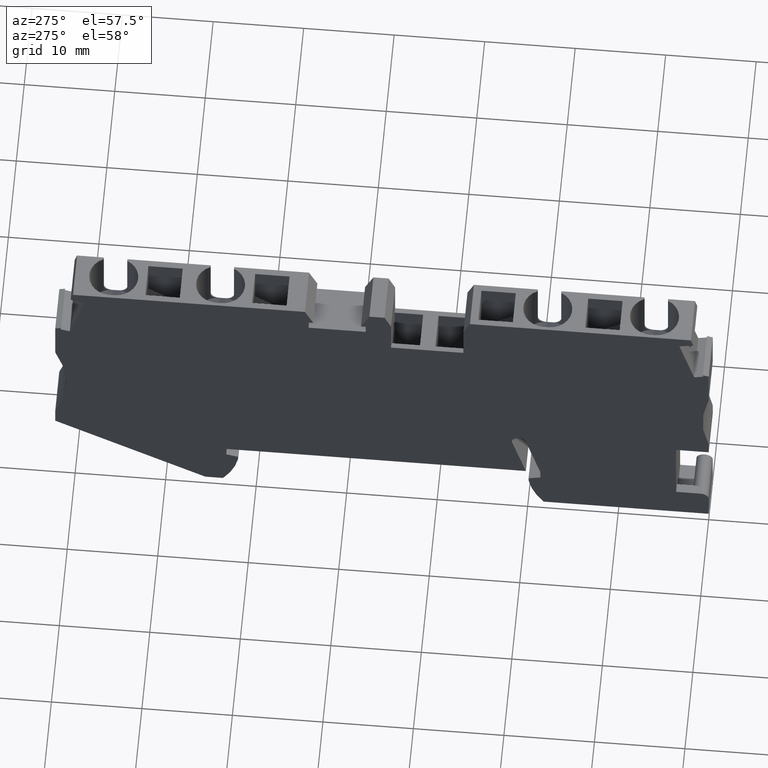
[diagram: clean part render]
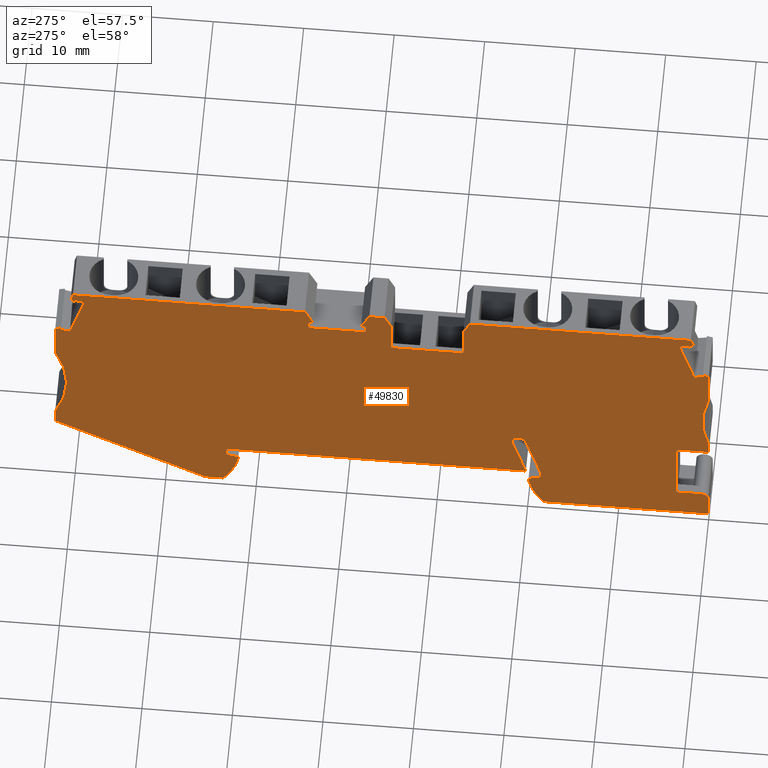
[diagram: same view with one face highlighted and labeled with its STEP entity id]
A machine part, auxiliary view. The second image highlights one B-rep face of the part: STEP entity #49830.
In plain terms, the highlighted planar face has unit normal (1, -0, -0).
Its self-contained STEP definition (entity closure, byte-faithful):
#590=CARTESIAN_POINT('',(65.1726403599232,35.8828020429767,
-5.15000000000003));
#600=VERTEX_POINT('',#590);
#750=CARTESIAN_POINT('',(66.1647270843106,36.2836310979319,
-5.15000000000003));
#760=VERTEX_POINT('',#750);
#790=CARTESIAN_POINT('',(0.,9.55134613065406,-5.15000000000003));
#800=DIRECTION('',(-0.927183854566833,-0.3746065934158,0.));
#810=VECTOR('',#800,1.);
#820=LINE('',#790,#810);
#830=EDGE_CURVE('',#760,#600,#820,.T.);
#2500=CARTESIAN_POINT('',(0.,27.8649441912292,-5.15000000000003));
#2510=DIRECTION('',(-0.990268068741587,0.139173100959946,0.));
#2520=VECTOR('',#2510,1.);
#2530=LINE('',#2500,#2520);
#2540=CARTESIAN_POINT('',(-0.0594846624507337,27.873304215342,
-5.15000000000003));
#2550=VERTEX_POINT('',#2540);
#2560=CARTESIAN_POINT('',(-1.11907149600432,28.0222194333691,
-5.15000000000003));
#2570=VERTEX_POINT('',#2560);
#2580=EDGE_CURVE('',#2550,#2570,#2530,.T.);
#4910=CARTESIAN_POINT('',(-2.574721754712,21.7806509272932,
-5.15000000000003));
#4920=VERTEX_POINT('',#4910);
#5070=CARTESIAN_POINT('',(-1.97757163966823,16.9172535208719,
-5.15000000000003));
#5080=VERTEX_POINT('',#5070);
#5110=CARTESIAN_POINT('',(0.0996059055751821,0.,-5.15000000000003));
#5120=DIRECTION('',(-0.12186934340515,0.992546151641322,0.));
#5130=VECTOR('',#5120,1.);
#5140=LINE('',#5110,#5130);
#5150=EDGE_CURVE('',#5080,#4920,#5140,.T.);
#5620=CARTESIAN_POINT('',(23.6590813655684,30.4927653966388,
-5.15000000000003));
#5630=VERTEX_POINT('',#5620);
#5660=CARTESIAN_POINT('',(27.40312217551,0.,-5.15000000000003));
#5670=DIRECTION('',(0.12186934340515,-0.992546151641322,0.));
#5680=VECTOR('',#5670,1.);
#5690=LINE('',#5660,#5680);
#5700=CARTESIAN_POINT('',(24.1831195422103,26.2248169445828,
-5.15000000000003));
#5710=VERTEX_POINT('',#5700);
#5720=EDGE_CURVE('',#5630,#5710,#5690,.T.);
#6070=CARTESIAN_POINT('',(18.2830849904164,0.,-5.15000000000003));
#6080=DIRECTION('',(0.139173100960267,0.990268068741542,0.));
#6090=VECTOR('',#6080,1.);
#6100=LINE('',#6070,#6090);
#6110=CARTESIAN_POINT('',(18.579939487428,2.11222949998687,
-5.15000000000003));
#6120=VERTEX_POINT('',#6110);
#6130=CARTESIAN_POINT('',(19.4454516024282,8.2706681974017,
-5.15000000000003));
#6140=VERTEX_POINT('',#6130);
#6150=EDGE_CURVE('',#6120,#6140,#6100,.T.);
#8210=CARTESIAN_POINT('',(-3.9768221027943,0.,-5.15000000000003));
#8220=DIRECTION('',(0.139173100960265,0.990268068741542,0.));
#8230=VECTOR('',#8220,1.);
#8240=LINE('',#8210,#8230);
#8250=CARTESIAN_POINT('',(-0.939754526024447,21.6098586805515,
-5.15000000000003));
#8260=VERTEX_POINT('',#8250);
#8270=EDGE_CURVE('',#8260,#2550,#8240,.T.);
#9200=CARTESIAN_POINT('',(34.5459302579226,30.3434253649531,
-5.15000000000003));
#9210=VERTEX_POINT('',#9200);
#9240=CARTESIAN_POINT('',(0.,26.1017184872538,-5.15000000000003));
#9250=DIRECTION('',(-0.992546151641329,-0.12186934340509,0.));
#9260=VECTOR('',#9250,1.);
#9270=LINE('',#9240,#9260);
#9280=CARTESIAN_POINT('',(40.8237846670545,31.1142489619904,
-5.15000000000003));
#9290=VERTEX_POINT('',#9280);
#9300=EDGE_CURVE('',#9290,#9210,#9270,.T.);
#9530=CARTESIAN_POINT('',(0.,29.3005621830774,-5.15000000000003));
#9540=DIRECTION('',(-0.992546151641307,-0.121869343405268,0.));
#9550=VECTOR('',#9540,1.);
#9560=LINE('',#9530,#9550);
#9570=CARTESIAN_POINT('',(33.7648010461225,33.4463584535037,
-5.15000000000003));
#9580=VERTEX_POINT('',#9570);
#9590=CARTESIAN_POINT('',(32.1054168262382,33.2426116906958,
-5.15000000000003));
#9600=VERTEX_POINT('',#9590);
#9610=EDGE_CURVE('',#9580,#9600,#9560,.T.);
#10240=CARTESIAN_POINT('',(0.,23.2555032303301,-5.15000000000003));
#10250=DIRECTION('',(-0.992546151641322,-0.121869343405147,0.));
#10260=VECTOR('',#10250,1.);
#10270=LINE('',#10240,#10260);
#10280=CARTESIAN_POINT('',(32.1234887553407,27.199771691824,
-5.15000000000003));
#10290=VERTEX_POINT('',#10280);
#10300=EDGE_CURVE('',#10290,#5710,#10270,.T.);
#15140=CARTESIAN_POINT('',(66.2701516819956,37.4375136583268,
-5.15000000000003));
#15150=VERTEX_POINT('',#15140);
#15200=CARTESIAN_POINT('',(81.3958890300398,0.,-5.15000000000003));
#15210=DIRECTION('',(0.374606593416301,-0.92718385456663,0.));
#15220=VECTOR('',#15210,1.);
#15230=LINE('',#15200,#15220);
#15240=CARTESIAN_POINT('',(66.6435147722448,36.5134075821014,
-5.15000000000003));
#15250=VERTEX_POINT('',#15240);
#15260=EDGE_CURVE('',#15150,#15250,#15230,.T.);
#15950=CARTESIAN_POINT('',(80.8242656163768,0.,-5.15000000000003));
#15960=DIRECTION('',(-0.374606593415343,0.927183854567017,0.));
#15970=VECTOR('',#15960,1.);
#15980=LINE('',#15950,#15970);
#15990=CARTESIAN_POINT('',(66.2667353146247,36.0311518681397,
-5.15000000000003));
#16000=VERTEX_POINT('',#15990);
#16010=EDGE_CURVE('',#16000,#760,#15980,.T.);
#17240=CARTESIAN_POINT('',(20.9898097165993,8.15460557620855,
-5.15000000000003));
#17250=VERTEX_POINT('',#17240);
#17280=CARTESIAN_POINT('',(20.2966220684799,8.25202674688056,
-5.15000000000003));
#17290=DIRECTION('',(0.,0.,1.));
#17300=DIRECTION('',(0.992546151641322,0.121869343405147,0.));
#17310=AXIS2_PLACEMENT_3D('',#17280,#17290,#17300);
#17320=CIRCLE('',#17310,0.700000000000238);
#17330=CARTESIAN_POINT('',(20.3722274973531,8.94793178287702,
-5.15000000000003));
#17340=VERTEX_POINT('',#17330);
#17350=EDGE_CURVE('',#17250,#17340,#17320,.T.);
#18290=CARTESIAN_POINT('',(79.6702334417447,0.,-5.15000000000003));
#18300=DIRECTION('',(-0.374606593416089,0.927183854566716,0.));
#18310=VECTOR('',#18300,1.);
#18320=LINE('',#18290,#18310);
#18330=CARTESIAN_POINT('',(67.5420270632793,30.0183641628429,
-5.15000000000003));
#18340=VERTEX_POINT('',#18330);
#18350=EDGE_CURVE('',#18340,#600,#18320,.T.);
#20170=CARTESIAN_POINT('',(0.,26.8486383349679,-5.15000000000003));
#20180=DIRECTION('',(-0.788010753607547,0.615661475324602,0.));
#20190=VECTOR('',#20180,1.);
#20200=LINE('',#20170,#20190);
#20210=CARTESIAN_POINT('',(-1.15696939205255,27.7525618912842,
-5.15000000000003));
#20220=VERTEX_POINT('',#20210);
#20230=CARTESIAN_POINT('',(-1.6392251060153,28.1293413489031,
-5.15000000000003));
#20240=VERTEX_POINT('',#20230);
#20250=EDGE_CURVE('',#20220,#20240,#20200,.T.);
#22120=CARTESIAN_POINT('',(0.,2.72961388316878,-5.15000000000003));
#22130=DIRECTION('',(0.927183854566591,0.374606593416397,0.));
#22140=VECTOR('',#22130,1.);
#22150=LINE('',#22120,#22140);
#22160=CARTESIAN_POINT('',(68.5341137876666,30.4191932177987,
-5.15000000000003));
#22170=VERTEX_POINT('',#22160);
#22180=EDGE_CURVE('',#18340,#22170,#22150,.T.);
#24540=CARTESIAN_POINT('',(0.472001856340417,-3.03292416474261,
-5.15000000000003));
#24550=VERTEX_POINT('',#24540);
#24580=CARTESIAN_POINT('',(1.36529339281745,-2.923241755678,
-5.15000000000003));
#24590=DIRECTION('',(0.,0.,1.));
#24600=DIRECTION('',(0.992546151641322,0.121869343405147,0.));
#24610=AXIS2_PLACEMENT_3D('',#24580,#24590,#24600);
#24620=CIRCLE('',#24610,0.89999999999984);
#24630=CARTESIAN_POINT('',(1.26494843890937,-2.02885319905124,
-5.15000000000003));
#24640=VERTEX_POINT('',#24630);
#24650=EDGE_CURVE('',#24640,#24550,#24620,.T.);
#25700=CARTESIAN_POINT('',(35.4632007791807,0.,-5.15000000000003));
#25710=DIRECTION('',(-0.121869343405153,0.992546151641321,0.));
#25720=VECTOR('',#25710,1.);
#25730=LINE('',#25700,#25720);
#25740=CARTESIAN_POINT('',(31.5994505786988,31.4677201438798,
-5.15000000000003));
#25750=VERTEX_POINT('',#25740);
#25760=EDGE_CURVE('',#10290,#25750,#25730,.T.);
#31190=CARTESIAN_POINT('',(0.,29.3005621830763,-5.15000000000003));
#31200=DIRECTION('',(0.992546151641308,0.121869343405262,0.));
#31210=VECTOR('',#31200,1.);
#31220=LINE('',#31190,#31210);
#31230=CARTESIAN_POINT('',(40.8310435482327,34.3139839363583,
-5.15000000000003));
#31240=VERTEX_POINT('',#31230);
#31250=EDGE_CURVE('',#31240,#15150,#31220,.T.);
#32400=CARTESIAN_POINT('',(-5.59254621883097,0.,-5.15000000000003));
#32410=DIRECTION('',(-0.139173100960491,-0.990268068741511,0.));
#32420=VECTOR('',#32410,1.);
#32430=LINE('',#32400,#32420);
#32440=CARTESIAN_POINT('',(-1.50051398889326,29.1163222318282,
-5.15000000000003));
#32450=VERTEX_POINT('',#32440);
#32460=EDGE_CURVE('',#32450,#20240,#32430,.T.);
#32770=CARTESIAN_POINT('',(38.2716344176484,0.,-5.15000000000003));
#32780=DIRECTION('',(-0.121869343405147,0.992546151641322,0.));
#32790=VECTOR('',#32780,1.);
#32800=LINE('',#32770,#32790);
#32810=CARTESIAN_POINT('',(34.4155300604793,31.405449747209,
-5.15000000000003));
#32820=VERTEX_POINT('',#32810);
#32830=EDGE_CURVE('',#9210,#32820,#32800,.T.);
#33290=CARTESIAN_POINT('',(71.390431316507,11.8205739917481,
-5.15000000000003));
#33300=VERTEX_POINT('',#33290);
#33330=CARTESIAN_POINT('',(0.,-40.0891165681469,-5.15000000000003));
#33340=DIRECTION('',(-0.808793328533598,-0.588092978804834,0.));
#33350=VECTOR('',#33340,1.);
#33360=LINE('',#33330,#33350);
#33370=CARTESIAN_POINT('',(56.0528727208695,0.66826820003724,
-5.15000000000003));
#33380=VERTEX_POINT('',#33370);
#33390=EDGE_CURVE('',#33300,#33380,#33360,.T.);
#33660=CARTESIAN_POINT('',(20.1680133300546,2.30722044942676,
-5.15000000000003));
#33670=VERTEX_POINT('',#33660);
#33720=CARTESIAN_POINT('',(19.8437546422496,0.,-5.15000000000003));
#33730=DIRECTION('',(0.139173100960126,0.990268068741562,0.));
#33740=VECTOR('',#33730,1.);
#33750=LINE('',#33720,#33740);
#33760=EDGE_CURVE('',#33670,#17250,#33750,.T.);
#34060=CARTESIAN_POINT('',(0.849796820895223,-6.10981723483092,
-5.15000000000003));
#34070=VERTEX_POINT('',#34060);
#34220=CARTESIAN_POINT('',(18.9548874062867,-3.88679163719604,
-5.15000000000003));
#34230=VERTEX_POINT('',#34220);
#34260=CARTESIAN_POINT('',(0.,-6.21415916434124,-5.15000000000003));
#34270=DIRECTION('',(-0.99254615164132,-0.121869343405163,0.));
#34280=VECTOR('',#34270,1.);
#34290=LINE('',#34260,#34280);
#34300=EDGE_CURVE('',#34230,#34070,#34290,.T.);
#36600=CARTESIAN_POINT('',(38.1161142534881,0.,-5.15000000000003));
#36610=DIRECTION('',(0.615661475326723,0.78801075360589,0.));
#36620=VECTOR('',#36610,1.);
#36630=LINE('',#36600,#36620);
#36640=EDGE_CURVE('',#16000,#15250,#36630,.T.);
#36960=CARTESIAN_POINT('',(-5.05733760536605,0.,-5.15000000000003));
#36970=DIRECTION('',(-0.139173100959458,-0.990268068741656,0.));
#36980=VECTOR('',#36970,1.);
#36990=LINE('',#36960,#36980);
#37000=EDGE_CURVE('',#2570,#20220,#36990,.T.);
#37470=CARTESIAN_POINT('',(3.93548559318379,-1.70090299200704,
-5.15000000000003));
#37480=VERTEX_POINT('',#37470);
#37510=CARTESIAN_POINT('',(3.72664096617177,0.,-5.15000000000003));
#37520=DIRECTION('',(-0.121869343405147,0.992546151641322,0.));
#37530=VECTOR('',#37520,1.);
#37540=LINE('',#37510,#37530);
#37550=CARTESIAN_POINT('',(2.88740923989942,6.83499391210915,
-5.15000000000003));
#37560=VERTEX_POINT('',#37550);
#37570=EDGE_CURVE('',#37480,#37560,#37540,.T.);
#37860=CARTESIAN_POINT('',(1.26494245434449,-2.02880445868169,
-5.15000000000003));
#37870=VERTEX_POINT('',#37860);
#37970=CARTESIAN_POINT('',(1.01583658972741,0.,-5.15000000000003));
#37980=DIRECTION('',(-0.121869343405147,0.992546151641322,0.));
#37990=VECTOR('',#37980,1.);
#38000=LINE('',#37970,#37990);
#38010=EDGE_CURVE('',#24640,#37870,#38000,.T.);
#38530=CARTESIAN_POINT('',(0.,6.4804646364411,-5.15000000000003));
#38540=DIRECTION('',(-0.992546151641322,-0.121869343405147,0.));
#38550=VECTOR('',#38540,1.);
#38560=LINE('',#38530,#38550);
#38570=CARTESIAN_POINT('',(-0.685756599574034,6.39626431347614,
-5.15000000000003));
#38580=VERTEX_POINT('',#38570);
#38590=EDGE_CURVE('',#37560,#38580,#38560,.T.);
#38940=CARTESIAN_POINT('',(71.146692629697,13.8056662950281,
-5.15000000000003));
#38950=VERTEX_POINT('',#38940);
#39000=CARTESIAN_POINT('',(72.8418153037041,0.,-5.15000000000003));
#39010=DIRECTION('',(0.121869343405147,-0.992546151641322,0.));
#39020=VECTOR('',#39010,1.);
#39030=LINE('',#39000,#39020);
#39040=EDGE_CURVE('',#38950,#33300,#39030,.T.);
#39340=CARTESIAN_POINT('',(40.1694208776461,32.1119387046781,
-5.15000000000003));
#39350=VERTEX_POINT('',#39340);
#39500=CARTESIAN_POINT('',(40.6933844696108,32.1762733442466,
-5.15000000000003));
#39510=VERTEX_POINT('',#39500);
#39540=CARTESIAN_POINT('',(0.,27.1797540004923,-5.15000000000003));
#39550=DIRECTION('',(0.992546151641322,0.121869343405147,0.));
#39560=VECTOR('',#39550,1.);
#39570=LINE('',#39540,#39560);
#39580=EDGE_CURVE('',#39350,#39510,#39570,.T.);
#39790=CARTESIAN_POINT('',(69.6842605088354,25.7162201147242,
-5.15000000000003));
#39800=VERTEX_POINT('',#39790);
#39850=CARTESIAN_POINT('',(84.0607301811666,21.4363696780219,
-5.15000000000003));
#39860=DIRECTION('',(0.,0.,1.));
#39870=DIRECTION('',(0.992546151641322,0.121869343405147,0.));
#39880=AXIS2_PLACEMENT_3D('',#39850,#39860,#39870);
#39890=CIRCLE('',#39880,15.);
#39900=EDGE_CURVE('',#39800,#38950,#39890,.T.);
#40160=CARTESIAN_POINT('',(0.,-6.21415916433783,-5.15000000000003));
#40170=DIRECTION('',(-0.992546151641329,-0.12186934340509,0.));
#40180=VECTOR('',#40170,1.);
#40190=LINE('',#40160,#40180);
#40200=CARTESIAN_POINT('',(54.1087751513861,0.42956303361592,
-5.15000000000003));
#40210=VERTEX_POINT('',#40200);
#40220=EDGE_CURVE('',#33380,#40210,#40190,.T.);
#41110=CARTESIAN_POINT('',(20.2376660574214,8.15932971663351,
-5.15000000000003));
#41120=DIRECTION('',(0.,0.,1.));
#41130=DIRECTION('',(0.992546151641322,0.121869343405147,0.));
#41140=AXIS2_PLACEMENT_3D('',#41110,#41120,#41130);
#41150=CIRCLE('',#41140,0.80000000000001);
#41160=EDGE_CURVE('',#17340,#6140,#41150,.T.);
#41650=CARTESIAN_POINT('',(61.113993705743,6.84648698560988,
-5.15000000000003));
#41660=DIRECTION('',(0.,0.,-1.));
#41670=DIRECTION('',(-0.992546151641322,-0.121869343405147,0.));
#41680=AXIS2_PLACEMENT_3D('',#41650,#41660,#41670);
#41690=CIRCLE('',#41680,9.499999999999);
#41700=CARTESIAN_POINT('',(51.9625327047183,4.29682788159134,
-5.15000000000003));
#41710=VERTEX_POINT('',#41700);
#41720=EDGE_CURVE('',#40210,#41710,#41690,.T.);
#42090=CARTESIAN_POINT('',(20.1018012370322,0.384821958285959,
-5.15000000000003));
#42100=VERTEX_POINT('',#42090);
#42150=CARTESIAN_POINT('',(10.6053593749794,0.644806497501705,
-5.15000000000003));
#42160=DIRECTION('',(0.,0.,1.));
#42170=DIRECTION('',(0.992546151641322,0.121869343405147,0.));
#42180=AXIS2_PLACEMENT_3D('',#42150,#42160,#42170);
#42190=CIRCLE('',#42180,9.49999999999899);
#42200=EDGE_CURVE('',#34230,#42100,#42190,.T.);
#42910=CARTESIAN_POINT('',(22.6289845756449,0.,-5.15000000000003));
#42920=DIRECTION('',(-0.274147194873168,-0.961687743263464,0.));
#42930=VECTOR('',#42920,1.);
#42940=LINE('',#42910,#42930);
#42950=EDGE_CURVE('',#9600,#25750,#42940,.T.);
#44450=CARTESIAN_POINT('',(68.4321055573543,30.6716724475861,
-5.15000000000003));
#44460=VERTEX_POINT('',#44450);
#44560=CARTESIAN_POINT('',(80.8242656164402,0.,-5.15000000000003));
#44570=DIRECTION('',(-0.374606593416855,0.927183854566407,0.));
#44580=VECTOR('',#44570,1.);
#44590=LINE('',#44560,#44580);
#44600=EDGE_CURVE('',#22170,#44460,#44590,.T.);
#45340=CARTESIAN_POINT('',(0.,40.2891776825544,-5.15000000000003));
#45350=DIRECTION('',(0.990268068742576,-0.139173100952909,0.));
#45360=VECTOR('',#45350,1.);
#45370=LINE('',#45340,#45360);
#45380=CARTESIAN_POINT('',(69.0871103937922,30.5796175211438,
-5.15000000000003));
#45390=VERTEX_POINT('',#45380);
#45400=EDGE_CURVE('',#44460,#45390,#45370,.T.);
#45800=CARTESIAN_POINT('',(0.,-2.18411986250582,-5.15000000000003));
#45810=DIRECTION('',(0.992546151641322,0.121869343405147,0.));
#45820=VECTOR('',#45810,1.);
#45830=LINE('',#45800,#45820);
#45840=EDGE_CURVE('',#37870,#37480,#45830,.T.);
#46070=CARTESIAN_POINT('',(51.9074884597862,4.74512728118741,
-5.15000000000003));
#46080=VERTEX_POINT('',#46070);
#46180=CARTESIAN_POINT('',(52.4901168294319,0.,-5.15000000000003));
#46190=DIRECTION('',(-0.121869343404462,0.992546151641406,0.));
#46200=VECTOR('',#46190,1.);
#46210=LINE('',#46180,#46200);
#46220=EDGE_CURVE('',#41710,#46080,#46210,.T.);
#46390=CARTESIAN_POINT('',(53.6422195780393,0.,-5.15000000000003));
#46400=DIRECTION('',(0.51089298590022,-0.859644320028904,0.));
#46410=VECTOR('',#46400,1.);
#46420=LINE('',#46390,#46410);
#46430=CARTESIAN_POINT('',(34.9394936524424,31.4697843867773,
-5.15000000000003));
#46440=VERTEX_POINT('',#46430);
#46450=EDGE_CURVE('',#9580,#46440,#46420,.T.);
#48100=CARTESIAN_POINT('',(9.74057615401367,14.4427812308347,
-5.15000000000003));
#48110=DIRECTION('',(0.,-0.,1.));
#48120=DIRECTION('',(0.992546151641322,0.121869343405147,0.));
#48130=AXIS2_PLACEMENT_3D('',#48100,#48110,#48120);
#48140=PLANE('',#48130);
#48150=ORIENTED_EDGE('',*,*,#37570,.T.);
#48160=ORIENTED_EDGE('',*,*,#45840,.T.);
#48170=ORIENTED_EDGE('',*,*,#38010,.T.);
#48180=ORIENTED_EDGE('',*,*,#24650,.F.);
#48190=CARTESIAN_POINT('',(0.0996055945218983,0.,-5.15000000000003));
#48200=DIRECTION('',(-0.121869343404765,0.992546151641369,0.));
#48210=VECTOR('',#48200,1.);
#48220=LINE('',#48190,#48210);
#48230=EDGE_CURVE('',#34070,#24550,#48220,.T.);
#48240=ORIENTED_EDGE('',*,*,#48230,.T.);
#48250=ORIENTED_EDGE('',*,*,#34300,.T.);
#48260=ORIENTED_EDGE('',*,*,#42200,.F.);
#48270=CARTESIAN_POINT('',(20.1490514322064,0.,-5.15000000000003));
#48280=DIRECTION('',(0.121869343405772,-0.992546151641245,0.));
#48290=VECTOR('',#48280,1.);
#48300=LINE('',#48270,#48290);
#48310=CARTESIAN_POINT('',(20.0467569920995,0.833121357882112,
-5.15000000000003));
#48320=VERTEX_POINT('',#48310);
#48330=EDGE_CURVE('',#48320,#42100,#48300,.T.);
#48340=ORIENTED_EDGE('',*,*,#48330,.T.);
#48350=CARTESIAN_POINT('',(0.,3.65050931862994,-5.15000000000003));
#48360=DIRECTION('',(0.990268068741556,-0.13917310096017,0.));
#48370=VECTOR('',#48360,1.);
#48380=LINE('',#48350,#48370);
#48390=CARTESIAN_POINT('',(18.7139957651747,1.02042873317325,
-5.15000000000003));
#48400=VERTEX_POINT('',#48390);
#48410=EDGE_CURVE('',#48400,#48320,#48380,.T.);
#48420=ORIENTED_EDGE('',*,*,#48410,.T.);
#48430=CARTESIAN_POINT('',(18.8392886591101,0.,-5.15000000000003));
#48440=DIRECTION('',(0.121869343405147,-0.992546151641322,0.));
#48450=VECTOR('',#48440,1.);
#48460=LINE('',#48430,#48450);
#48470=EDGE_CURVE('',#6120,#48400,#48460,.T.);
#48480=ORIENTED_EDGE('',*,*,#48470,.T.);
#48490=ORIENTED_EDGE('',*,*,#6150,.F.);
#48500=ORIENTED_EDGE('',*,*,#41160,.T.);
#48510=ORIENTED_EDGE('',*,*,#17350,.T.);
#48520=ORIENTED_EDGE('',*,*,#33760,.T.);
#48530=CARTESIAN_POINT('',(0.,-0.169100211587931,-5.15000000000003));
#48540=DIRECTION('',(-0.992546151641322,-0.121869343405147,0.));
#48550=VECTOR('',#48540,1.);
#48560=LINE('',#48530,#48550);
#48570=CARTESIAN_POINT('',(53.0212909493827,6.34109571613719,
-5.15000000000003));
#48580=VERTEX_POINT('',#48570);
#48590=EDGE_CURVE('',#48580,#33670,#48560,.T.);
#48600=ORIENTED_EDGE('',*,*,#48590,.T.);
#48610=CARTESIAN_POINT('',(53.7998796025319,0.,-5.15000000000003));
#48620=DIRECTION('',(-0.121869343405147,0.992546151641322,0.));
#48630=VECTOR('',#48620,1.);
#48640=LINE('',#48610,#48630);
#48650=CARTESIAN_POINT('',(53.1553472271283,5.24929494933183,
-5.15000000000003));
#48660=VERTEX_POINT('',#48650);
#48670=EDGE_CURVE('',#48660,#48580,#48640,.T.);
#48680=ORIENTED_EDGE('',*,*,#48670,.T.);
#48690=CARTESIAN_POINT('',(0.,-16.226859373798,-5.15000000000003));
#48700=DIRECTION('',(0.927183854566812,0.374606593415851,0.));
#48710=VECTOR('',#48700,1.);
#48720=LINE('',#48690,#48710);
#48730=EDGE_CURVE('',#46080,#48660,#48720,.T.);
#48740=ORIENTED_EDGE('',*,*,#48730,.T.);
#48750=ORIENTED_EDGE('',*,*,#46220,.T.);
#48760=ORIENTED_EDGE('',*,*,#41720,.T.);
#48770=ORIENTED_EDGE('',*,*,#40220,.T.);
#48780=ORIENTED_EDGE('',*,*,#33390,.T.);
#48790=ORIENTED_EDGE('',*,*,#39040,.T.);
#48800=ORIENTED_EDGE('',*,*,#39900,.T.);
#48810=CARTESIAN_POINT('',(72.8418153037042,0.,-5.15000000000003));
#48820=DIRECTION('',(0.121869343405147,-0.992546151641322,0.));
#48830=VECTOR('',#48820,1.);
#48840=LINE('',#48810,#48830);
#48850=EDGE_CURVE('',#45390,#39800,#48840,.T.);
#48860=ORIENTED_EDGE('',*,*,#48850,.T.);
#48870=ORIENTED_EDGE('',*,*,#45400,.T.);
#48880=ORIENTED_EDGE('',*,*,#44600,.T.);
#48890=ORIENTED_EDGE('',*,*,#22180,.T.);
#48900=ORIENTED_EDGE('',*,*,#18350,.F.);
#48910=ORIENTED_EDGE('',*,*,#830,.T.);
#48920=ORIENTED_EDGE('',*,*,#16010,.T.);
#48930=ORIENTED_EDGE('',*,*,#36640,.F.);
#48940=ORIENTED_EDGE('',*,*,#15260,.T.);
#48950=ORIENTED_EDGE('',*,*,#31250,.T.);
#48960=CARTESIAN_POINT('',(30.5211237682856,0.,-5.15000000000003));
#48970=DIRECTION('',(0.287750497361314,0.957705409438788,0.));
#48980=VECTOR('',#48970,1.);
#48990=LINE('',#48960,#48980);
#49000=EDGE_CURVE('',#39350,#31240,#48990,.T.);
#49010=ORIENTED_EDGE('',*,*,#49000,.T.);
#49020=ORIENTED_EDGE('',*,*,#39580,.F.);
#49030=CARTESIAN_POINT('',(44.6441340636757,0.,-5.15000000000003));
#49040=DIRECTION('',(0.121869343405147,-0.992546151641322,0.));
#49050=VECTOR('',#49040,1.);
#49060=LINE('',#49030,#49050);
#49070=EDGE_CURVE('',#39510,#9290,#49060,.T.);
#49080=ORIENTED_EDGE('',*,*,#49070,.F.);
#49090=ORIENTED_EDGE('',*,*,#9300,.F.);
#49100=ORIENTED_EDGE('',*,*,#32830,.F.);
#49110=CARTESIAN_POINT('',(0.,27.1797540004923,-5.15000000000003));
#49120=DIRECTION('',(0.992546151641322,0.121869343405147,0.));
#49130=VECTOR('',#49120,1.);
#49140=LINE('',#49110,#49130);
#49150=EDGE_CURVE('',#32820,#46440,#49140,.T.);
#49160=ORIENTED_EDGE('',*,*,#49150,.F.);
#49170=ORIENTED_EDGE('',*,*,#46450,.T.);
#49180=ORIENTED_EDGE('',*,*,#9610,.F.);
#49190=ORIENTED_EDGE('',*,*,#42950,.F.);
#49200=ORIENTED_EDGE('',*,*,#25760,.T.);
#49210=ORIENTED_EDGE('',*,*,#10300,.F.);
#49220=ORIENTED_EDGE('',*,*,#5720,.T.);
#49230=CARTESIAN_POINT('',(41.2011308712362,0.,-5.15000000000003));
#49240=DIRECTION('',(-0.498657173381252,0.866799298243498,0.));
#49250=VECTOR('',#49240,1.);
#49260=LINE('',#49230,#49250);
#49270=CARTESIAN_POINT('',(22.7387593504523,32.0925307654021,
-5.15000000000003));
#49280=VERTEX_POINT('',#49270);
#49290=EDGE_CURVE('',#5630,#49280,#49260,.T.);
#49300=ORIENTED_EDGE('',*,*,#49290,.F.);
#49310=CARTESIAN_POINT('',(0.,29.3005621830829,-5.15000000000003));
#49320=DIRECTION('',(-0.992546151641337,-0.121869343405022,0.));
#49330=VECTOR('',#49320,1.);
#49340=LINE('',#49310,#49330);
#49350=EDGE_CURVE('',#49280,#32450,#49340,.T.);
#49360=ORIENTED_EDGE('',*,*,#49350,.F.);
#49370=ORIENTED_EDGE('',*,*,#32460,.F.);
#49380=ORIENTED_EDGE('',*,*,#20250,.T.);
#49390=ORIENTED_EDGE('',*,*,#37000,.T.);
#49400=ORIENTED_EDGE('',*,*,#2580,.T.);
#49410=ORIENTED_EDGE('',*,*,#8270,.T.);
#49420=CARTESIAN_POINT('',(0.,21.4777847950484,-5.15000000000003));
#49430=DIRECTION('',(0.990268068741539,-0.13917310096029,0.));
#49440=VECTOR('',#49430,1.);
#49450=LINE('',#49420,#49440);
#49460=CARTESIAN_POINT('',(-1.99934135957705,21.7587738985788,
-5.15000000000003));
#49470=VERTEX_POINT('',#49460);
#49480=EDGE_CURVE('',#49470,#8260,#49450,.T.);
#49490=ORIENTED_EDGE('',*,*,#49480,.T.);
#49500=CARTESIAN_POINT('',(-5.05733760539991,0.,-5.15000000000003));
#49510=DIRECTION('',(-0.139173100960779,-0.99026806874147,0.));
#49520=VECTOR('',#49510,1.);
#49530=LINE('',#49500,#49520);
#49540=CARTESIAN_POINT('',(-1.96144346352877,22.0284314406614,
-5.15000000000003));
#49550=VERTEX_POINT('',#49540);
#49560=EDGE_CURVE('',#49550,#49470,#49530,.T.);
#49570=ORIENTED_EDGE('',*,*,#49560,.T.);
#49580=CARTESIAN_POINT('',(0.,22.8209060404035,-5.15000000000003));
#49590=DIRECTION('',(-0.927183854569499,-0.374606593409201,0.));
#49600=VECTOR('',#49590,1.);
#49610=LINE('',#49580,#49600);
#49620=EDGE_CURVE('',#49550,#4920,#49610,.T.);
#49630=ORIENTED_EDGE('',*,*,#49620,.F.);
#49640=ORIENTED_EDGE('',*,*,#5150,.T.);
#49650=CARTESIAN_POINT('',(-15.631589843338,10.7069566766096,
-5.15000000000003));
#49660=DIRECTION('',(0.,0.,1.));
#49670=DIRECTION('',(0.992546151641322,0.121869343405147,0.));
#49680=AXIS2_PLACEMENT_3D('',#49650,#49660,#49670);
#49690=CIRCLE('',#49680,15.);
#49700=CARTESIAN_POINT('',(-0.880747549022041,7.98433815610036,
-5.15000000000003));
#49710=VERTEX_POINT('',#49700);
#49720=EDGE_CURVE('',#49710,#5080,#49690,.T.);
#49730=ORIENTED_EDGE('',*,*,#49720,.T.);
#49740=CARTESIAN_POINT('',(0.0996059055750651,0.,-5.15000000000003));
#49750=DIRECTION('',(-0.12186934340515,0.992546151641322,0.));
#49760=VECTOR('',#49750,1.);
#49770=LINE('',#49740,#49760);
#49780=EDGE_CURVE('',#38580,#49710,#49770,.T.);
#49790=ORIENTED_EDGE('',*,*,#49780,.T.);
#49800=ORIENTED_EDGE('',*,*,#38590,.T.);
#49810=EDGE_LOOP('',(#49800,#49790,#49730,#49640,#49630,#49570,#49490,
#49410,#49400,#49390,#49380,#49370,#49360,#49300,#49220,#49210,#49200,
#49190,#49180,#49170,#49160,#49100,#49090,#49080,#49020,#49010,#48950,
#48940,#48930,#48920,#48910,#48900,#48890,#48880,#48870,#48860,#48800,
#48790,#48780,#48770,#48760,#48750,#48740,#48680,#48600,#48520,#48510,
#48500,#48490,#48480,#48420,#48340,#48260,#48250,#48240,#48180,#48170,
#48160,#48150));
#49820=FACE_OUTER_BOUND('',#49810,.T.);
#49830=ADVANCED_FACE('',(#49820),#48140,.F.);